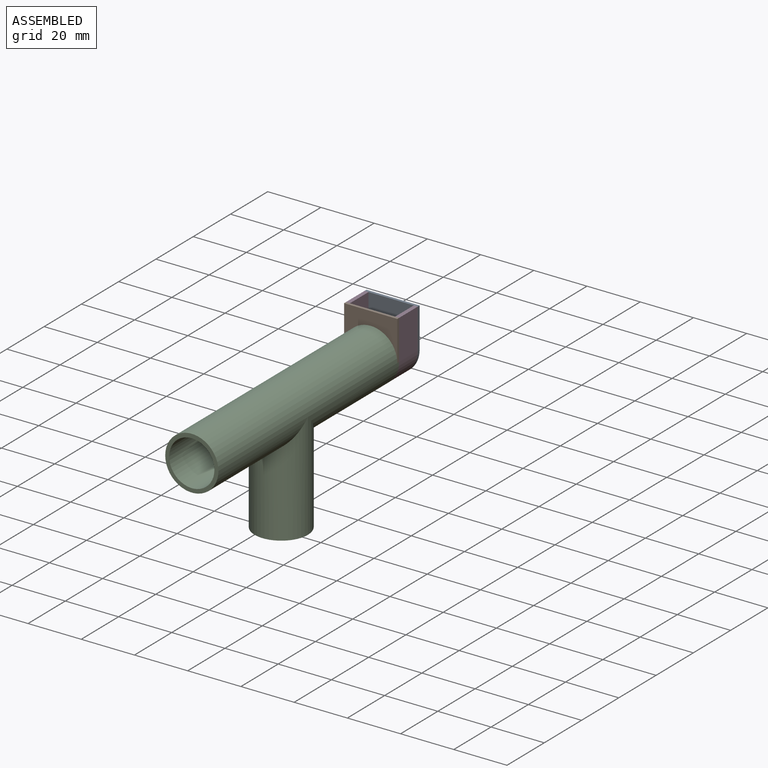
[diagram: assembled view]
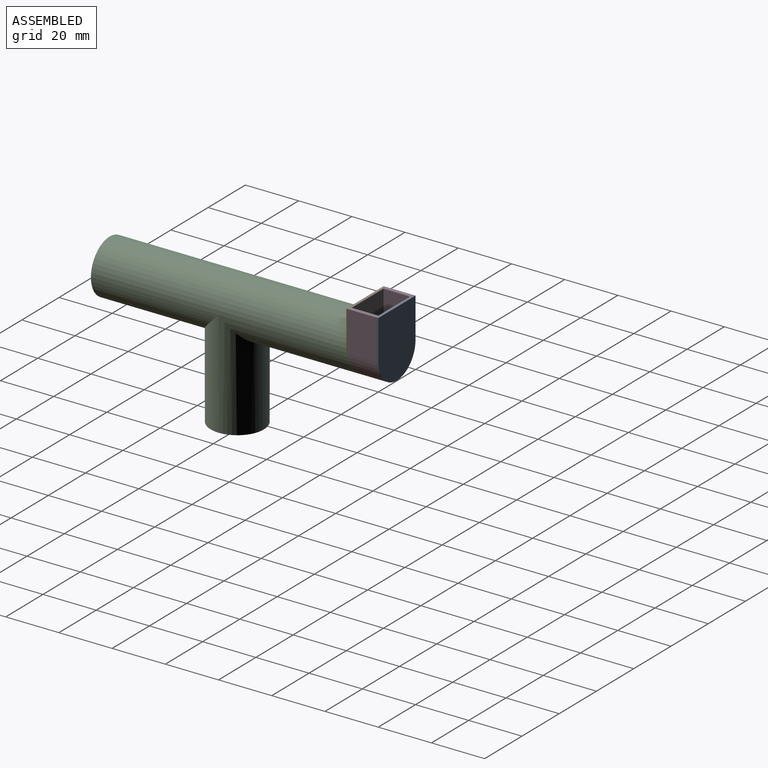
[diagram: assembled view, second angle]
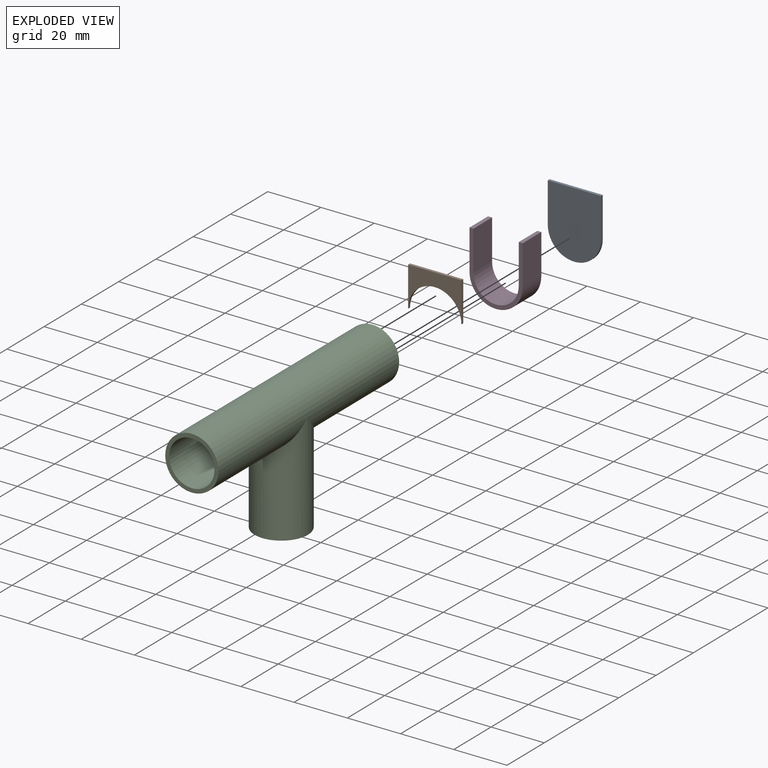
[diagram: exploded view]
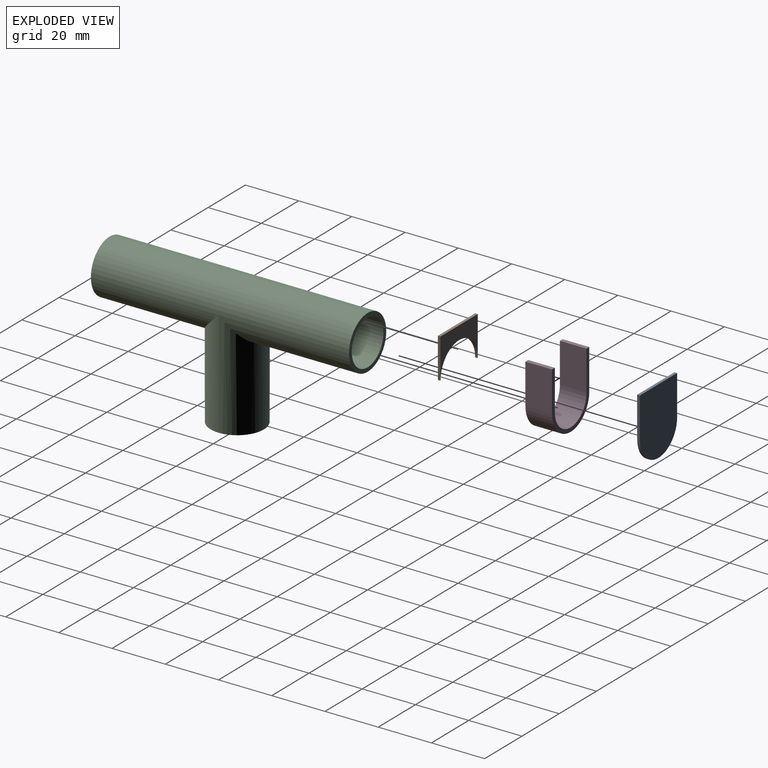
[diagram: exploded view, second angle]
ASSEMBLY  parts=4 mates=3
PART A: 9 faces, bbox 20x1x25 mm
  f0: plane 1x0.01mm, normal (0,0,-1), area 0mm2, adj f1,f6,f7,f8
  f1: cylinder r=10mm len=1mm, axis (0,1,0), area 0mm2, adj f0,f6,f7,f8
  f2: plane 15x1mm, normal (1,0,0), area 15mm2, adj f3,f5,f7,f8
  f3: cylinder r=10mm len=20mm, axis (0,1,0), area 31.4mm2, adj f2,f4,f7,f8
  f4: plane 15x1mm, normal (-1,0,0), area 15mm2, adj f3,f5,f7,f8
  f5: plane 20x1mm, normal (0,0,-1), area 20mm2, adj f2,f4,f7,f8
  f6: plane 1x0.03mm, normal (1,0,0), area 0mm2, adj f0,f1,f7,f8
  f7: plane 25x20mm, normal (0,-1,0), area 457.1mm2, adj f0,f1,f2,f3,f4,f5,f6
  f8: plane 25x20mm, normal (0,1,0), area 457.1mm2, adj f0,f1,f2,f3,f4,f5,f6
PART B: 6 faces, bbox 20x1x15 mm
  f0: plane 15x1mm, normal (-1,0,0), area 15mm2, adj f1,f3,f4,f5
  f1: plane 20x1mm, normal (0,0,-1), area 20mm2, adj f0,f2,f4,f5
  f2: plane 15x1mm, normal (1,0,0), area 15mm2, adj f1,f3,f4,f5
  f3: cylinder r=10mm len=20mm, axis (0,1,0), area 31.4mm2, adj f0,f2,f4,f5
  f4: plane 20x15mm, normal (0,-1,0), area 142.9mm2, adj f0,f1,f2,f3
  f5: plane 20x15mm, normal (0,1,0), area 142.9mm2, adj f0,f1,f2,f3
PART C: 7 faces, bbox 20x97x50 mm
  f0: cylinder r=8mm len=37.13mm, axis (0,0,1), area 1707.1mm2, adj f1,f5
  f1: cylinder r=8.5mm len=97mm, axis (0,1,0), area 4941.1mm2, adj f0,f3,f4
  f2: cylinder r=10mm len=97mm, axis (0,1,0), area 5694.7mm2, adj f3,f4,f6
  f3: plane 20x20mm, normal (0,-1,0), area 87.2mm2, adj f1,f2
  f4: plane 20x20mm, normal (0,1,0), area 87.2mm2, adj f1,f2
  f5: plane 20x20mm, normal (0,0,-1), area 113.1mm2, adj f0,f6
  f6: cylinder r=10mm len=40mm, axis (0,0,1), area 2113.3mm2, adj f2,f5
PART D: 10 faces, bbox 20x10x25 mm
  f0: plane 15x10mm, normal (1,0,0), area 150mm2, adj f1,f7,f8,f9
  f1: cylinder r=10mm len=20mm, axis (0,1,0), area 314.2mm2, adj f0,f2,f8,f9
  f2: plane 15x10mm, normal (-1,0,0), area 150mm2, adj f1,f3,f8,f9
  f3: plane 10x1.5mm, normal (0,0,-1), area 15mm2, adj f2,f4,f8,f9
  f4: plane 15x10mm, normal (1,0,0), area 150mm2, adj f3,f5,f8,f9
  f5: cylinder r=8.5mm len=17mm, axis (0,1,0), area 267mm2, adj f4,f6,f8,f9
  f6: plane 15x10mm, normal (-1,0,0), area 150mm2, adj f5,f7,f8,f9
  f7: plane 10x1.5mm, normal (0,0,-1), area 15mm2, adj f0,f6,f8,f9
  f8: plane 25x20mm, normal (0,-1,0), area 88.6mm2, adj f0,f1,f2,f3,f4,f5,f6,f7
  f9: plane 25x20mm, normal (0,1,0), area 88.6mm2, adj f0,f1,f2,f3,f4,f5,f6,f7
PLACE A rot(axis=(0,-1,0),180deg) t=(5.8,39.06,22.14)mm
PLACE B rot(axis=(0,1,0),180deg) t=(5.8,28.06,22.14)mm
PLACE C t=(5.8,28.06,22.14)mm
PLACE D rot(axis=(0,1,0),180deg) t=(5.8,38.06,22.14)mm
MATE fastened D.f1 <-> C.f1  axis (0,1,0) through (5.8,28.06,22.14)mm
MATE fastened B.f3 <-> C.f1  axis (0,1,0) through (5.8,28.06,22.14)mm
MATE fastened A.f1 <-> D.f1  axis (0,-1,0) through (5.8,38.06,22.14)mm
